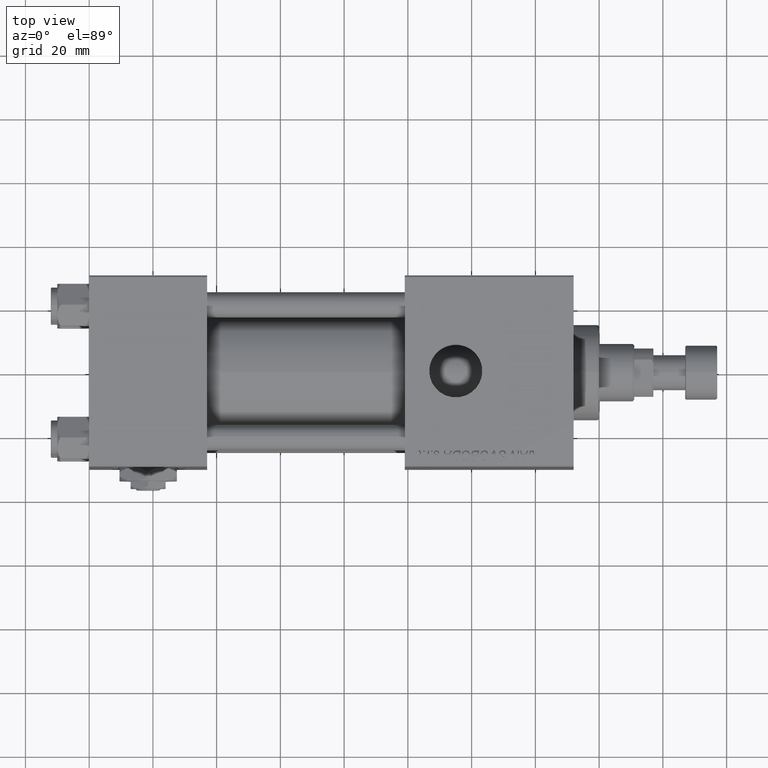
[diagram: clean part render]
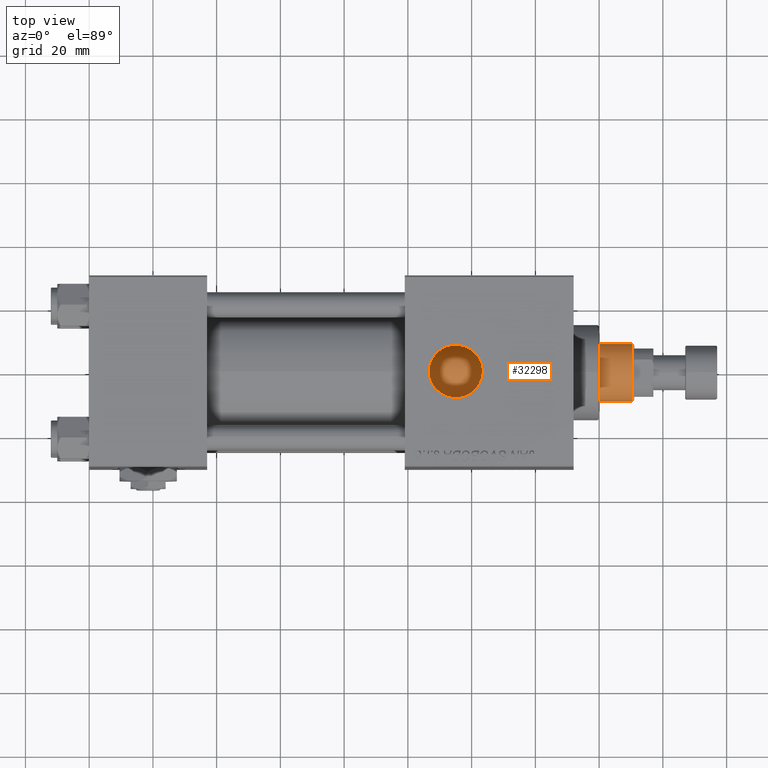
[diagram: same view with one face highlighted and labeled with its STEP entity id]
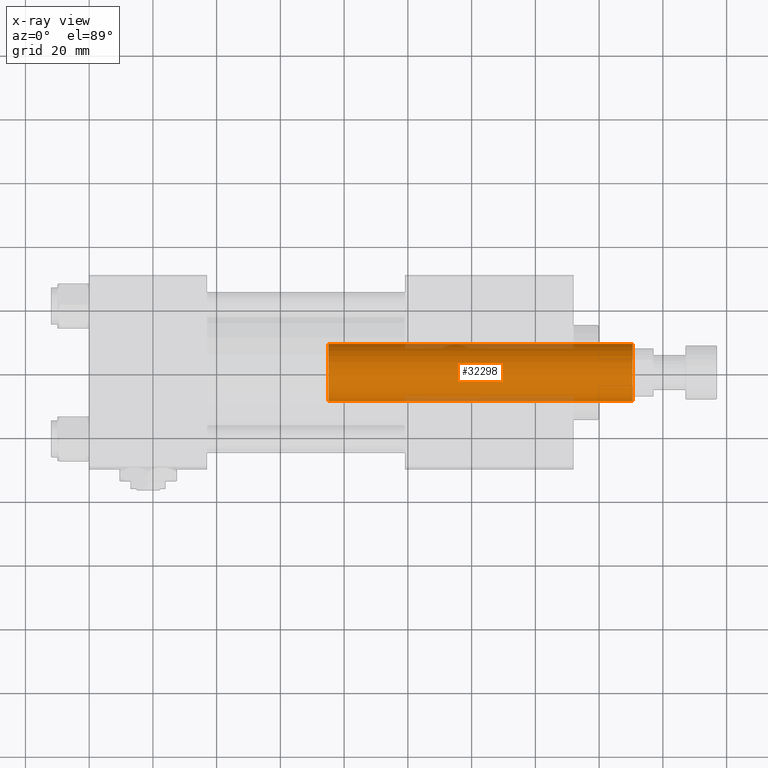
[diagram: x-ray of the same camera — body ghosted, the highlighted face saturated]
A machine part, top view. The second image highlights one B-rep face of the part: STEP entity #32298.
The next image is the same camera in x-ray: the body ghosted, the highlighted face saturated — about 8% of this face is hidden behind the body in this view.
In plain terms, the highlighted cylindrical surface (edge-blend (fillet) strip) has radius 9 mm, axis along (-1, 0, 0).
Its self-contained STEP definition (entity closure, byte-faithful):
#1568 = VERTEX_POINT ( 'NONE', #52466 ) ;
#2335 = EDGE_CURVE ( 'NONE', #1568, #44373, #49624, .T. ) ;
#6002 = FACE_OUTER_BOUND ( 'NONE', #27368, .T. ) ;
#7549 = CARTESIAN_POINT ( 'NONE',  ( 9.000000000000000000, 1.102182119232617714E-15, 38.00000000000000000 ) ) ;
#7582 = AXIS2_PLACEMENT_3D ( 'NONE', #22559, #23344, #38788 ) ;
#8723 = DIRECTION ( 'NONE',  ( -0.000000000000000000, -0.000000000000000000, -1.000000000000000000 ) ) ;
#10901 = VECTOR ( 'NONE', #43264, 1000.000000000000000 ) ;
#12533 = ORIENTED_EDGE ( 'NONE', *, *, #38490, .T. ) ;
#14242 = DIRECTION ( 'NONE',  ( -0.000000000000000000, -0.000000000000000000, -1.000000000000000000 ) ) ;
#15804 = ORIENTED_EDGE ( 'NONE', *, *, #31312, .T. ) ;
#16191 = LINE ( 'NONE', #47344, #24758 ) ;
#18262 = CARTESIAN_POINT ( 'NONE',  ( -9.000000000000000000, 0.000000000000000000, 134.0000000000000000 ) ) ;
#19981 = ORIENTED_EDGE ( 'NONE', *, *, #47860, .F. ) ;
#22225 = DIRECTION ( 'NONE',  ( -1.000000000000000000, 0.000000000000000000, 0.000000000000000000 ) ) ;
#22559 = CARTESIAN_POINT ( 'NONE',  ( 0.000000000000000000, 0.000000000000000000, 38.00000000000000000 ) ) ;
#23344 = DIRECTION ( 'NONE',  ( 0.000000000000000000, 0.000000000000000000, 1.000000000000000000 ) ) ;
#24758 = VECTOR ( 'NONE', #8723, 1000.000000000000000 ) ;
#25527 = ORIENTED_EDGE ( 'NONE', *, *, #2335, .T. ) ;
#27368 = EDGE_LOOP ( 'NONE', ( #19981, #25527, #15804, #12533 ) ) ;
#30929 = AXIS2_PLACEMENT_3D ( 'NONE', #35190, #47443, #51430 ) ;
#31312 = EDGE_CURVE ( 'NONE', #44373, #48841, #51504, .T. ) ;
#32298 = ADVANCED_FACE ( 'NONE', ( #6002 ), #34462, .T. ) ;
#32826 = CARTESIAN_POINT ( 'NONE',  ( -9.000000000000000000, 0.000000000000000000, 133.5000000000000284 ) ) ;
#32924 = VERTEX_POINT ( 'NONE', #7549 ) ;
#33400 = CARTESIAN_POINT ( 'NONE',  ( -9.000000000000000000, 0.000000000000000000, 38.00000000000000000 ) ) ;
#34462 = CYLINDRICAL_SURFACE ( 'NONE', #50018, 9.000000000000000000 ) ;
#35190 = CARTESIAN_POINT ( 'NONE',  ( 0.000000000000000000, 0.000000000000000000, 133.5000000000000284 ) ) ;
#38490 = EDGE_CURVE ( 'NONE', #48841, #32924, #40728, .T. ) ;
#38788 = DIRECTION ( 'NONE',  ( 1.000000000000000000, 0.000000000000000000, 0.000000000000000000 ) ) ;
#40728 = CIRCLE ( 'NONE', #7582, 9.000000000000000000 ) ;
#43264 = DIRECTION ( 'NONE',  ( -0.000000000000000000, -0.000000000000000000, -1.000000000000000000 ) ) ;
#44373 = VERTEX_POINT ( 'NONE', #32826 ) ;
#47344 = CARTESIAN_POINT ( 'NONE',  ( 9.000000000000000000, 1.102182119232617714E-15, 134.0000000000000000 ) ) ;
#47443 = DIRECTION ( 'NONE',  ( 0.000000000000000000, 0.000000000000000000, -1.000000000000000000 ) ) ;
#47860 = EDGE_CURVE ( 'NONE', #1568, #32924, #16191, .T. ) ;
#48841 = VERTEX_POINT ( 'NONE', #33400 ) ;
#49624 = CIRCLE ( 'NONE', #30929, 9.000000000000000000 ) ;
#50018 = AXIS2_PLACEMENT_3D ( 'NONE', #50955, #14242, #22225 ) ;
#50955 = CARTESIAN_POINT ( 'NONE',  ( 0.000000000000000000, 0.000000000000000000, 134.0000000000000000 ) ) ;
#51430 = DIRECTION ( 'NONE',  ( 1.000000000000000000, 0.000000000000000000, 0.000000000000000000 ) ) ;
#51504 = LINE ( 'NONE', #18262, #10901 ) ;
#52466 = CARTESIAN_POINT ( 'NONE',  ( 9.000000000000000000, 1.102182119232617714E-15, 133.5000000000000284 ) ) ;